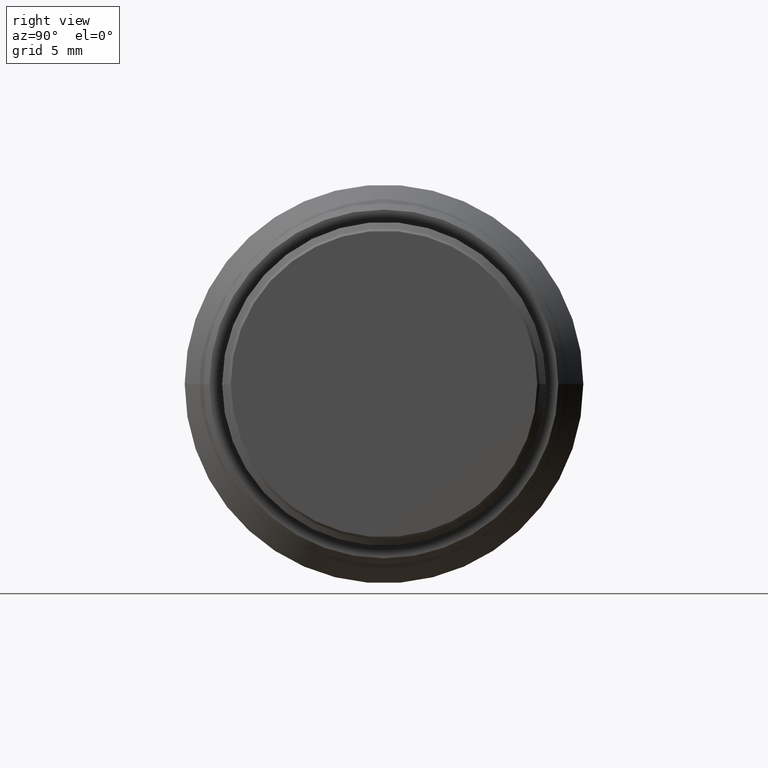
[diagram: clean part render]
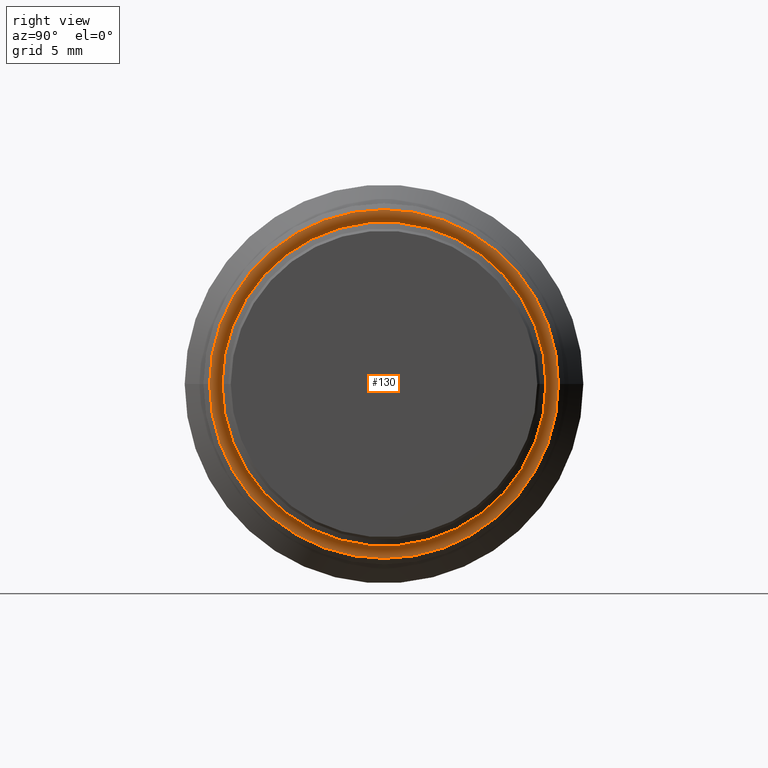
[diagram: same view with one face highlighted and labeled with its STEP entity id]
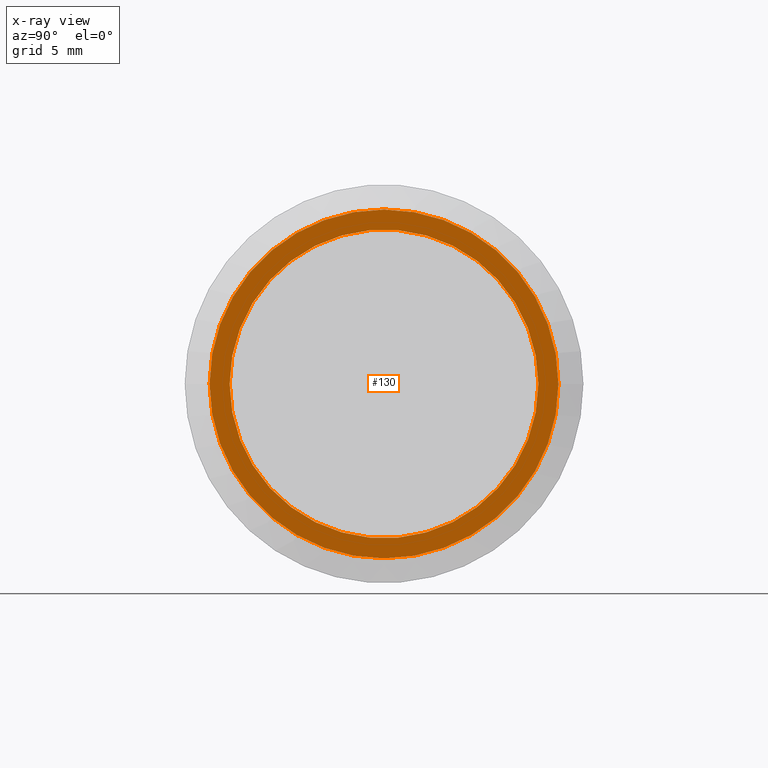
[diagram: x-ray of the same camera — body ghosted, the highlighted face saturated]
A machine part, right view. The second image highlights one B-rep face of the part: STEP entity #130.
The next image is the same camera in x-ray: the body ghosted, the highlighted face saturated — about 0% of this face is hidden behind the body in this view.
In plain terms, the highlighted planar face has unit normal (1, 0, 0).
Its self-contained STEP definition (entity closure, byte-faithful):
#10 = CARTESIAN_POINT ( 'NONE',  ( 45.00000000000000000, 0.000000000000000000, 0.000000000000000000 ) ) ;
#25 = DIRECTION ( 'NONE',  ( 0.000000000000000000, 1.000000000000000000, 0.000000000000000000 ) ) ;
#40 = ORIENTED_EDGE ( 'NONE', *, *, #486, .F. ) ;
#55 = VERTEX_POINT ( 'NONE', #1041 ) ;
#58 = ORIENTED_EDGE ( 'NONE', *, *, #861, .T. ) ;
#60 = AXIS2_PLACEMENT_3D ( 'NONE', #511, #896, #199 ) ;
#99 = CARTESIAN_POINT ( 'NONE',  ( 45.00000000000000000, -13.99999978895139918, -1.714505492960290034E-15 ) ) ;
#105 = ORIENTED_EDGE ( 'NONE', *, *, #1250, .T. ) ;
#124 = ORIENTED_EDGE ( 'NONE', *, *, #1059, .F. ) ;
#130 = ADVANCED_FACE ( 'NONE', ( #755, #1143 ), #760, .T. ) ;
#174 = DIRECTION ( 'NONE',  ( 1.000000000000000000, 0.000000000000000000, 0.000000000000000000 ) ) ;
#199 = DIRECTION ( 'NONE',  ( 0.000000000000000000, 1.000000000000000000, 0.000000000000000000 ) ) ;
#259 = EDGE_LOOP ( 'NONE', ( #105, #58 ) ) ;
#266 = CARTESIAN_POINT ( 'NONE',  ( 45.00000000000000000, 13.19499978895139947, 0.000000000000000000 ) ) ;
#288 = DIRECTION ( 'NONE',  ( 0.000000000000000000, 1.000000000000000000, 0.000000000000000000 ) ) ;
#291 = AXIS2_PLACEMENT_3D ( 'NONE', #10, #794, #288 ) ;
#451 = DIRECTION ( 'NONE',  ( 0.000000000000000000, 1.000000000000000000, 0.000000000000000000 ) ) ;
#486 = EDGE_CURVE ( 'NONE', #55, #1213, #1235, .T. ) ;
#511 = CARTESIAN_POINT ( 'NONE',  ( 45.00000000000000000, 0.000000000000000000, 0.000000000000000000 ) ) ;
#531 = VERTEX_POINT ( 'NONE', #99 ) ;
#608 = CIRCLE ( 'NONE', #60, 13.99999978895139918 ) ;
#651 = CARTESIAN_POINT ( 'NONE',  ( 45.00000000000000000, 0.000000000000000000, 0.000000000000000000 ) ) ;
#694 = AXIS2_PLACEMENT_3D ( 'NONE', #651, #1131, #1142 ) ;
#755 = FACE_OUTER_BOUND ( 'NONE', #259, .T. ) ;
#760 = PLANE ( 'NONE',  #1252 ) ;
#794 = DIRECTION ( 'NONE',  ( 1.000000000000000000, 0.000000000000000000, 0.000000000000000000 ) ) ;
#795 = CARTESIAN_POINT ( 'NONE',  ( 45.00000000000000000, 0.000000000000000000, 0.000000000000000000 ) ) ;
#861 = EDGE_CURVE ( 'NONE', #899, #531, #608, .T. ) ;
#871 = CARTESIAN_POINT ( 'NONE',  ( 45.00000000000000000, 12.38999978895130027, 0.000000000000000000 ) ) ;
#886 = DIRECTION ( 'NONE',  ( 1.000000000000000000, 0.000000000000000000, 0.000000000000000000 ) ) ;
#896 = DIRECTION ( 'NONE',  ( 1.000000000000000000, 0.000000000000000000, 0.000000000000000000 ) ) ;
#899 = VERTEX_POINT ( 'NONE', #1190 ) ;
#951 = CIRCLE ( 'NONE', #694, 12.38999978895130027 ) ;
#999 = EDGE_LOOP ( 'NONE', ( #40, #124 ) ) ;
#1038 = AXIS2_PLACEMENT_3D ( 'NONE', #795, #886, #25 ) ;
#1041 = CARTESIAN_POINT ( 'NONE',  ( 45.00000000000000000, -12.38999978895130027, -1.517337358297560071E-15 ) ) ;
#1059 = EDGE_CURVE ( 'NONE', #1213, #55, #951, .T. ) ;
#1131 = DIRECTION ( 'NONE',  ( 1.000000000000000000, 0.000000000000000000, 0.000000000000000000 ) ) ;
#1142 = DIRECTION ( 'NONE',  ( 0.000000000000000000, 1.000000000000000000, 0.000000000000000000 ) ) ;
#1143 = FACE_BOUND ( 'NONE', #999, .T. ) ;
#1190 = CARTESIAN_POINT ( 'NONE',  ( 45.00000000000000000, 13.99999978895139918, 0.000000000000000000 ) ) ;
#1213 = VERTEX_POINT ( 'NONE', #871 ) ;
#1235 = CIRCLE ( 'NONE', #291, 12.38999978895130027 ) ;
#1240 = CIRCLE ( 'NONE', #1038, 13.99999978895139918 ) ;
#1250 = EDGE_CURVE ( 'NONE', #531, #899, #1240, .T. ) ;
#1252 = AXIS2_PLACEMENT_3D ( 'NONE', #266, #174, #451 ) ;